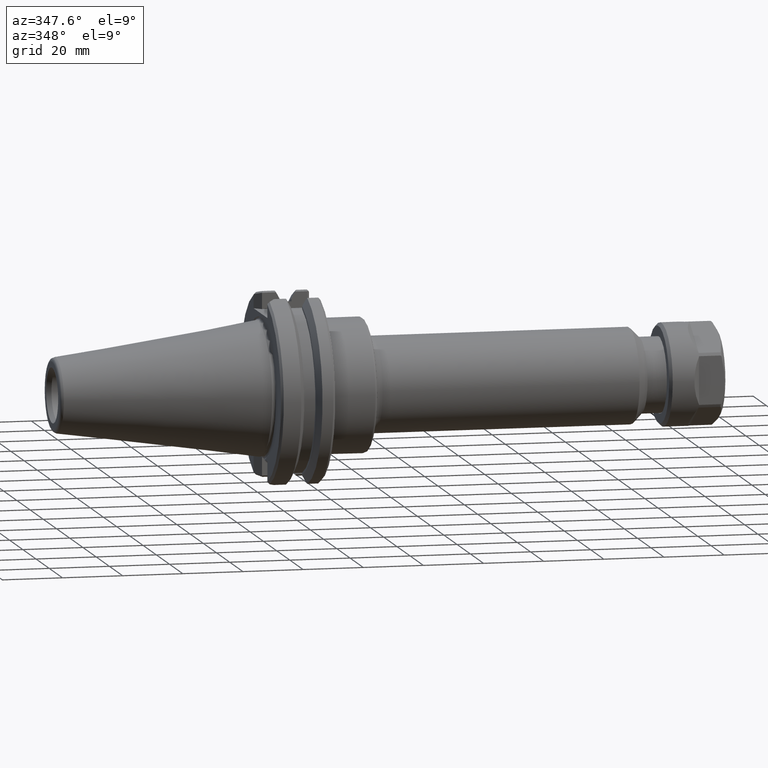
[diagram: clean part render]
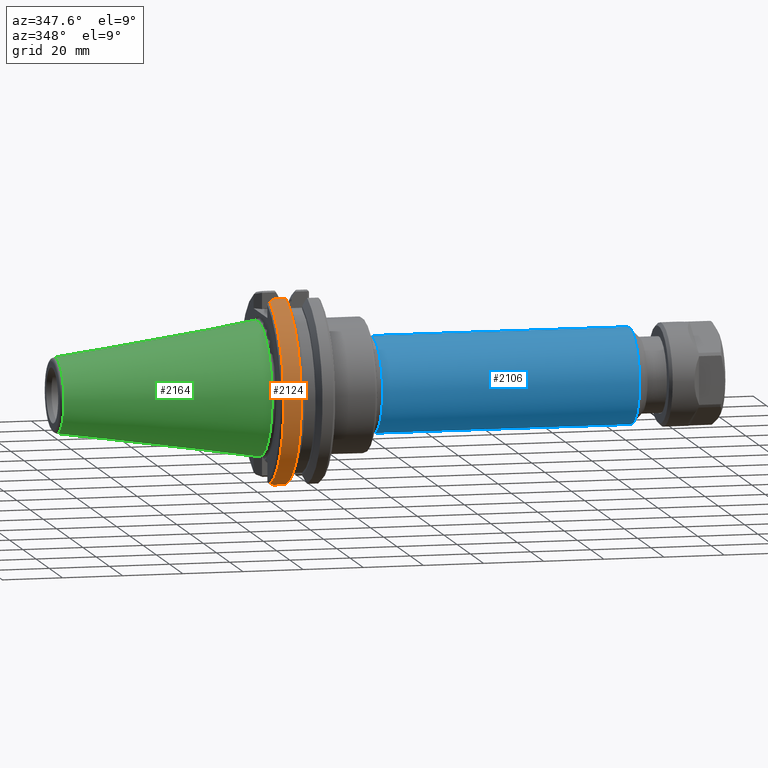
[diagram: same view with three faces highlighted in distinct colors, each labeled with its STEP entity id]
A machine part, auxiliary view with three faces highlighted in distinct colors.
Their STEP definitions:

[orange] entity #2124 — the highlighted cylindrical surface (partial cylindrical patch) has radius 31.75 mm, axis along (1, 0, 0).
#121=CYLINDRICAL_SURFACE('',#2286,1.25);
#154=LINE('',#3644,#266);
#155=LINE('',#3648,#267);
#266=VECTOR('',#2587,0.159597161674143);
#267=VECTOR('',#2590,0.159597161674194);
#508=FACE_OUTER_BOUND('',#660,.T.);
#660=EDGE_LOOP('',(#1514,#1515,#1516,#1517,#1518,#1519));
#833=CIRCLE('',#2284,1.25);
#835=CIRCLE('',#2287,1.25);
#917=B_SPLINE_CURVE_WITH_KNOTS('',3,(#3586,#3587,#3588,#3589,#3590,#3591,
#3592,#3593,#3594,#3595,#3596,#3597,#3598,#3599,#3600,#3601,#3602,#3603,
#3604,#3605,#3606,#3607,#3608,#3609,#3610,#3611,#3612,#3613,#3614,#3615),
 .UNSPECIFIED.,.F.,.F.,(4,2,2,2,2,2,2,2,2,2,2,2,2,2,4),(-0.0522227980911079,
0.,0.0122537437452531,0.024502935585128,0.0367475313027496,0.0489874867959797,
0.061222758078536,0.073453301281127,0.0856790726525604,0.0979000285608856,
0.110116125494511,0.122327320063341,0.134533568999907,0.146734829160502,
0.201199831019126),.UNSPECIFIED.);
#919=B_SPLINE_CURVE_WITH_KNOTS('',3,(#3649,#3650,#3651,#3652,#3653,#3654,
#3655,#3656,#3657,#3658,#3659,#3660,#3661,#3662,#3663,#3664,#3665,#3666,
#3667,#3668,#3669,#3670,#3671,#3672,#3673,#3674,#3675,#3676,#3677,#3678),
 .UNSPECIFIED.,.F.,.F.,(4,2,2,2,2,2,2,2,2,2,2,2,2,2,4),(-0.0544650018586125,
0.,0.0122012601605769,0.0244075090971253,0.036618703665939,0.0488348005995456,
0.0610557565078532,0.07328152787927,0.0855120710818425,0.0977473423643818,
0.109987297857596,0.122231893575198,0.134481085415057,0.146734829160291,
0.198957627251415),.UNSPECIFIED.);
#978=VERTEX_POINT('',#3534);
#982=VERTEX_POINT('',#3579);
#986=VERTEX_POINT('',#3627);
#989=VERTEX_POINT('',#3643);
#990=VERTEX_POINT('',#3645);
#991=VERTEX_POINT('',#3647);
#1193=EDGE_CURVE('',#982,#978,#917,.T.);
#1198=EDGE_CURVE('',#978,#986,#833,.T.);
#1202=EDGE_CURVE('',#989,#982,#154,.T.);
#1203=EDGE_CURVE('',#989,#990,#835,.T.);
#1204=EDGE_CURVE('',#991,#990,#155,.T.);
#1205=EDGE_CURVE('',#986,#991,#919,.T.);
#1514=ORIENTED_EDGE('',*,*,#1193,.F.);
#1515=ORIENTED_EDGE('',*,*,#1202,.F.);
#1516=ORIENTED_EDGE('',*,*,#1203,.T.);
#1517=ORIENTED_EDGE('',*,*,#1204,.F.);
#1518=ORIENTED_EDGE('',*,*,#1205,.F.);
#1519=ORIENTED_EDGE('',*,*,#1198,.F.);
#2124=ADVANCED_FACE('',(#508),#121,.T.);
#2284=AXIS2_PLACEMENT_3D('',#3628,#2581,#2582);
#2286=AXIS2_PLACEMENT_3D('',#3642,#2585,#2586);
#2287=AXIS2_PLACEMENT_3D('',#3646,#2588,#2589);
#2581=DIRECTION('center_axis',(-1.,0.,0.));
#2582=DIRECTION('ref_axis',(1.62451355720802E-13,-1.,0.));
#2585=DIRECTION('center_axis',(1.,0.,0.));
#2586=DIRECTION('ref_axis',(-1.62451355720802E-13,1.,0.));
#2587=DIRECTION('',(-1.,0.,0.));
#2588=DIRECTION('center_axis',(-1.,0.,0.));
#2589=DIRECTION('ref_axis',(-1.62451355720802E-13,1.,0.));
#2590=DIRECTION('',(1.,0.,0.));
#3534=CARTESIAN_POINT('',(0.0698000001421842,-0.408458681238645,-1.18138118561317));
#3579=CARTESIAN_POINT('',(0.139928966099218,-0.339628138324565,-1.2029766114344));
#3586=CARTESIAN_POINT('Ctrl Pts',(0.139928966090103,-0.339628138337144,
-1.20297661152056));
#3587=CARTESIAN_POINT('Ctrl Pts',(0.135092466600187,-0.344382624246985,
-1.20163431041355));
#3588=CARTESIAN_POINT('Ctrl Pts',(0.13025979112037,-0.349131802536587,-1.20026307500953));
#3589=CARTESIAN_POINT('Ctrl Pts',(0.12429790156704,-0.354988776584822,-1.19853423635086));
#3590=CARTESIAN_POINT('Ctrl Pts',(0.123165058288499,-0.356101599266152,
-1.19820407233199));
#3591=CARTESIAN_POINT('Ctrl Pts',(0.120900220392618,-0.358326240593862,
-1.19754066831512));
#3592=CARTESIAN_POINT('Ctrl Pts',(0.119768224263555,-0.359438060835858,
-1.19720742906323));
#3593=CARTESIAN_POINT('Ctrl Pts',(0.117505087520742,-0.36166069075308,-1.1965378771845));
#3594=CARTESIAN_POINT('Ctrl Pts',(0.116373947283123,-0.362771500103949,
-1.19620156592129));
#3595=CARTESIAN_POINT('Ctrl Pts',(0.114112531235474,-0.364992099616482,
-1.19552587332897));
#3596=CARTESIAN_POINT('Ctrl Pts',(0.11298225515231,-0.366101890114686,-1.19518649317789));
#3597=CARTESIAN_POINT('Ctrl Pts',(0.110722576124309,-0.368320443507243,
-1.19450466607977));
#3598=CARTESIAN_POINT('Ctrl Pts',(0.109593173043197,-0.369429206599435,
-1.19416222036711));
#3599=CARTESIAN_POINT('Ctrl Pts',(0.107335248591373,-0.371645696909308,
-1.19347426539971));
#3600=CARTESIAN_POINT('Ctrl Pts',(0.106206727040039,-0.372753424370409,
-1.19312875737799));
#3601=CARTESIAN_POINT('Ctrl Pts',(0.10395057426239,-0.37496783510702,-1.19243468108303));
#3602=CARTESIAN_POINT('Ctrl Pts',(0.102822942864953,-0.376074518616768,
-1.1920861140587));
#3603=CARTESIAN_POINT('Ctrl Pts',(0.100568579027038,-0.378286833124849,
-1.19138592307926));
#3604=CARTESIAN_POINT('Ctrl Pts',(0.0994418463987543,-0.379392464374863,
-1.19103430038062));
#3605=CARTESIAN_POINT('Ctrl Pts',(0.0971892885599236,-0.38160266621453,
-1.19032800134196));
#3606=CARTESIAN_POINT('Ctrl Pts',(0.0960634631991265,-0.382707237018144,
-1.18997332628317));
#3607=CARTESIAN_POINT('Ctrl Pts',(0.093812728843037,-0.384915309323739,
-1.1892609259968));
#3608=CARTESIAN_POINT('Ctrl Pts',(0.0926878195529379,-0.386018811187149,
-1.18890320201783));
#3609=CARTESIAN_POINT('Ctrl Pts',(0.0904389248872701,-0.388224738395965,
-1.18818470692276));
#3610=CARTESIAN_POINT('Ctrl Pts',(0.0893149398577045,-0.389327163451712,
-1.18782393728978));
#3611=CARTESIAN_POINT('Ctrl Pts',(0.0870679042763588,-0.391530926767374,
-1.18709935491009));
#3612=CARTESIAN_POINT('Ctrl Pts',(0.0859448521625858,-0.392632266677618,
-1.18673554315703));
#3613=CARTESIAN_POINT('Ctrl Pts',(0.0798099292078542,-0.398648117029378,
-1.18473899804746));
#3614=CARTESIAN_POINT('Ctrl Pts',(0.0748025734051189,-0.403556589459569,
-1.18307607072522));
#3615=CARTESIAN_POINT('Ctrl Pts',(0.069799999791613,-0.40845868173122,-1.18138118811451));
#3627=CARTESIAN_POINT('',(0.0698000001421838,-0.40845868123859,1.18138118561319));
#3628=CARTESIAN_POINT('Origin',(0.0698,0.,0.));
#3642=CARTESIAN_POINT('Origin',(0.3949,0.,0.));
#3643=CARTESIAN_POINT('',(0.299526127773361,-0.339628138321223,-1.20297661143534));
#3644=CARTESIAN_POINT('',(0.3949,-0.339628138321223,-1.20297661143534));
#3645=CARTESIAN_POINT('',(0.299526127773361,-0.339628138321233,1.20297661143534));
#3646=CARTESIAN_POINT('Origin',(0.299526127773361,0.,0.));
#3647=CARTESIAN_POINT('',(0.139928966099167,-0.339628138324575,1.2029766114344));
#3648=CARTESIAN_POINT('',(0.3949,-0.339628138321233,1.20297661143534));
#3649=CARTESIAN_POINT('Ctrl Pts',(0.0697999997916123,-0.408458681731163,
1.18138118811452));
#3650=CARTESIAN_POINT('Ctrl Pts',(0.0748025734051171,-0.403556589459512,
1.18307607072523));
#3651=CARTESIAN_POINT('Ctrl Pts',(0.0798099292078514,-0.398648117029321,
1.18473899804747));
#3652=CARTESIAN_POINT('Ctrl Pts',(0.0859448521625807,-0.392632266677565,
1.18673554315703));
#3653=CARTESIAN_POINT('Ctrl Pts',(0.0870679042763522,-0.391530926767322,
1.18709935491009));
#3654=CARTESIAN_POINT('Ctrl Pts',(0.0893149398576948,-0.389327163451663,
1.18782393728977));
#3655=CARTESIAN_POINT('Ctrl Pts',(0.0904389248872589,-0.388224738395918,
1.18818470692275));
#3656=CARTESIAN_POINT('Ctrl Pts',(0.0926878195529237,-0.386018811187105,
1.18890320201783));
#3657=CARTESIAN_POINT('Ctrl Pts',(0.0938127288430213,-0.384915309323697,
1.1892609259968));
#3658=CARTESIAN_POINT('Ctrl Pts',(0.0960634631991077,-0.382707237018105,
1.18997332628317));
#3659=CARTESIAN_POINT('Ctrl Pts',(0.0971892885599034,-0.381602666214493,
1.19032800134195));
#3660=CARTESIAN_POINT('Ctrl Pts',(0.0994418463987309,-0.379392464374829,
1.19103430038061));
#3661=CARTESIAN_POINT('Ctrl Pts',(0.100568579027013,-0.378286833124817,
1.19138592307925));
#3662=CARTESIAN_POINT('Ctrl Pts',(0.102822942864926,-0.37607451861674,1.19208611405869));
#3663=CARTESIAN_POINT('Ctrl Pts',(0.103950574262361,-0.374967835106993,
1.19243468108301));
#3664=CARTESIAN_POINT('Ctrl Pts',(0.106206727040007,-0.372753424370385,
1.19312875737798));
#3665=CARTESIAN_POINT('Ctrl Pts',(0.107335248591339,-0.371645696909286,
1.1934742653997));
#3666=CARTESIAN_POINT('Ctrl Pts',(0.109593173043161,-0.369429206599416,
1.1941622203671));
#3667=CARTESIAN_POINT('Ctrl Pts',(0.110722576124271,-0.368320443507226,
1.19450466607976));
#3668=CARTESIAN_POINT('Ctrl Pts',(0.112982255152269,-0.366101890114672,
1.19518649317788));
#3669=CARTESIAN_POINT('Ctrl Pts',(0.114112531235431,-0.364992099616471,
1.19552587332895));
#3670=CARTESIAN_POINT('Ctrl Pts',(0.116373947283078,-0.362771500103941,
1.19620156592128));
#3671=CARTESIAN_POINT('Ctrl Pts',(0.117505087520695,-0.361660690753073,
1.19653787718448));
#3672=CARTESIAN_POINT('Ctrl Pts',(0.119768224263505,-0.359438060835855,
1.19720742906321));
#3673=CARTESIAN_POINT('Ctrl Pts',(0.120900220392566,-0.35832624059386,1.1975406683151));
#3674=CARTESIAN_POINT('Ctrl Pts',(0.123165058288445,-0.356101599266155,
1.19820407233197));
#3675=CARTESIAN_POINT('Ctrl Pts',(0.124297901566984,-0.354988776584827,
1.19853423635084));
#3676=CARTESIAN_POINT('Ctrl Pts',(0.130259791120314,-0.349131802536594,
1.20026307500951));
#3677=CARTESIAN_POINT('Ctrl Pts',(0.135092466600135,-0.344382624246995,
1.20163431041355));
#3678=CARTESIAN_POINT('Ctrl Pts',(0.139928966090052,-0.339628138337154,
1.20297661152056));

[blue] entity #2106 — the highlighted cylindrical surface (bore or boss wall) has radius 15.875 mm, axis along (1, 0, 0).
#116=CYLINDRICAL_SURFACE('',#2254,0.625);
#434=FACE_BOUND('',#632,.T.);
#490=FACE_OUTER_BOUND('',#631,.T.);
#631=EDGE_LOOP('',(#1455));
#632=EDGE_LOOP('',(#1456));
#818=CIRCLE('',#2253,0.625);
#819=CIRCLE('',#2255,0.625);
#953=VERTEX_POINT('',#3114);
#954=VERTEX_POINT('',#3117);
#1161=EDGE_CURVE('',#953,#953,#818,.T.);
#1162=EDGE_CURVE('',#954,#954,#819,.T.);
#1455=ORIENTED_EDGE('',*,*,#1162,.F.);
#1456=ORIENTED_EDGE('',*,*,#1161,.F.);
#2106=ADVANCED_FACE('',(#490,#434),#116,.T.);
#2253=AXIS2_PLACEMENT_3D('',#3115,#2513,#2514);
#2254=AXIS2_PLACEMENT_3D('',#3116,#2515,#2516);
#2255=AXIS2_PLACEMENT_3D('',#3118,#2517,#2518);
#2513=DIRECTION('center_axis',(-1.,0.,0.));
#2514=DIRECTION('ref_axis',(0.,-1.,-1.22464679914735E-16));
#2515=DIRECTION('center_axis',(1.,0.,0.));
#2516=DIRECTION('ref_axis',(0.,1.,0.));
#2517=DIRECTION('center_axis',(1.,0.,0.));
#2518=DIRECTION('ref_axis',(0.,1.,0.));
#3114=CARTESIAN_POINT('',(1.5,0.625,0.));
#3115=CARTESIAN_POINT('Origin',(1.5,0.,0.));
#3116=CARTESIAN_POINT('Origin',(3.12256299212598,0.,0.));
#3117=CARTESIAN_POINT('',(4.86512598425197,0.625,0.));
#3118=CARTESIAN_POINT('Origin',(4.86512598425197,0.,0.));

[green] entity #2164 — the highlighted conical surface has half-angle 8.297 deg.
#100=CONICAL_SURFACE('',#2344,0.67903993059773,8.297);
#456=FACE_BOUND('',#712,.T.);
#548=FACE_OUTER_BOUND('',#711,.T.);
#711=EDGE_LOOP('',(#1717));
#712=EDGE_LOOP('',(#1718));
#848=CIRCLE('',#2331,0.875);
#854=CIRCLE('',#2342,0.48981834472846);
#1053=VERTEX_POINT('',#4252);
#1059=VERTEX_POINT('',#4269);
#1301=EDGE_CURVE('',#1053,#1053,#848,.T.);
#1307=EDGE_CURVE('',#1059,#1059,#854,.T.);
#1717=ORIENTED_EDGE('',*,*,#1301,.F.);
#1718=ORIENTED_EDGE('',*,*,#1307,.F.);
#2164=ADVANCED_FACE('',(#548,#456),#100,.T.);
#2331=AXIS2_PLACEMENT_3D('',#4253,#2728,#2729);
#2342=AXIS2_PLACEMENT_3D('',#4270,#2750,#2751);
#2344=AXIS2_PLACEMENT_3D('',#4272,#2754,#2755);
#2728=DIRECTION('center_axis',(1.,0.,0.));
#2729=DIRECTION('ref_axis',(-1.62451355720802E-13,1.,0.));
#2750=DIRECTION('center_axis',(-1.,-3.56945127670622E-15,7.13890255341328E-16));
#2751=DIRECTION('ref_axis',(3.56945127670622E-15,-1.,2.83346419976399E-30));
#2754=DIRECTION('center_axis',(1.,0.,0.));
#2755=DIRECTION('ref_axis',(-1.62451355720802E-13,1.,0.));
#4252=CARTESIAN_POINT('',(0.,0.875,0.));
#4253=CARTESIAN_POINT('Origin',(0.,0.,0.));
#4269=CARTESIAN_POINT('',(-2.64129243702512,0.489818344728471,-1.19970893607074E-16));
#4270=CARTESIAN_POINT('Origin',(-2.64129243702511,1.13644876536433E-14,
-5.99854468035363E-17));
#4272=CARTESIAN_POINT('Origin',(-1.34375,0.,0.));